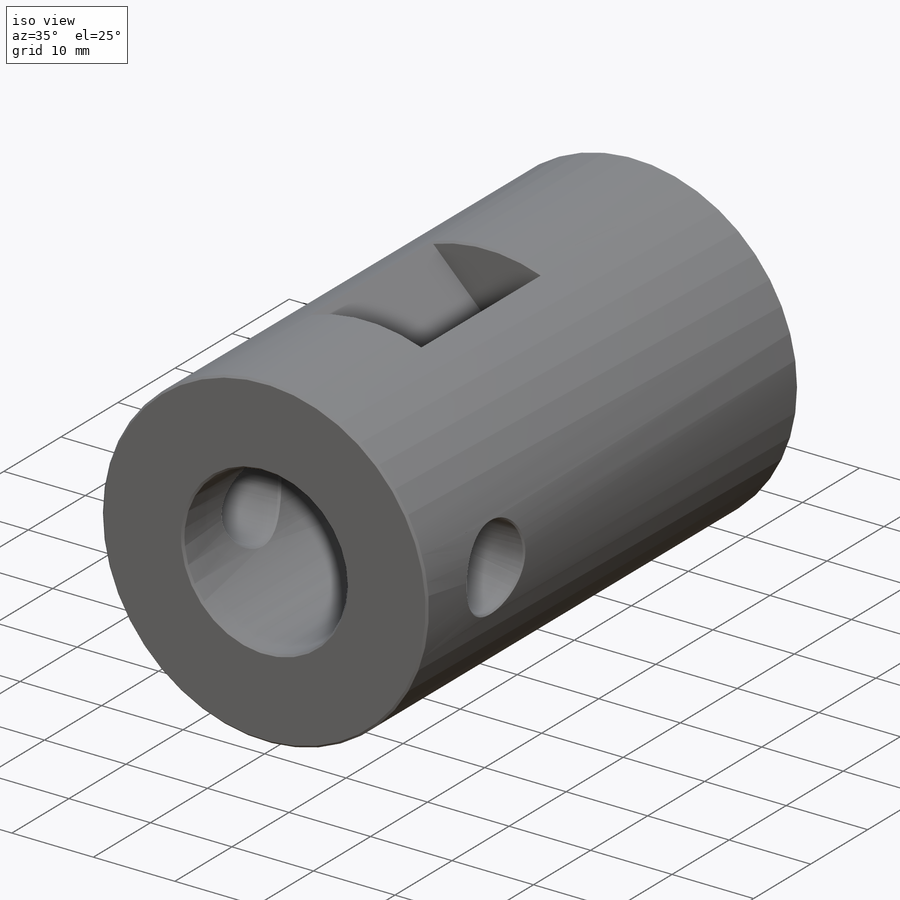
[diagram: iso view]
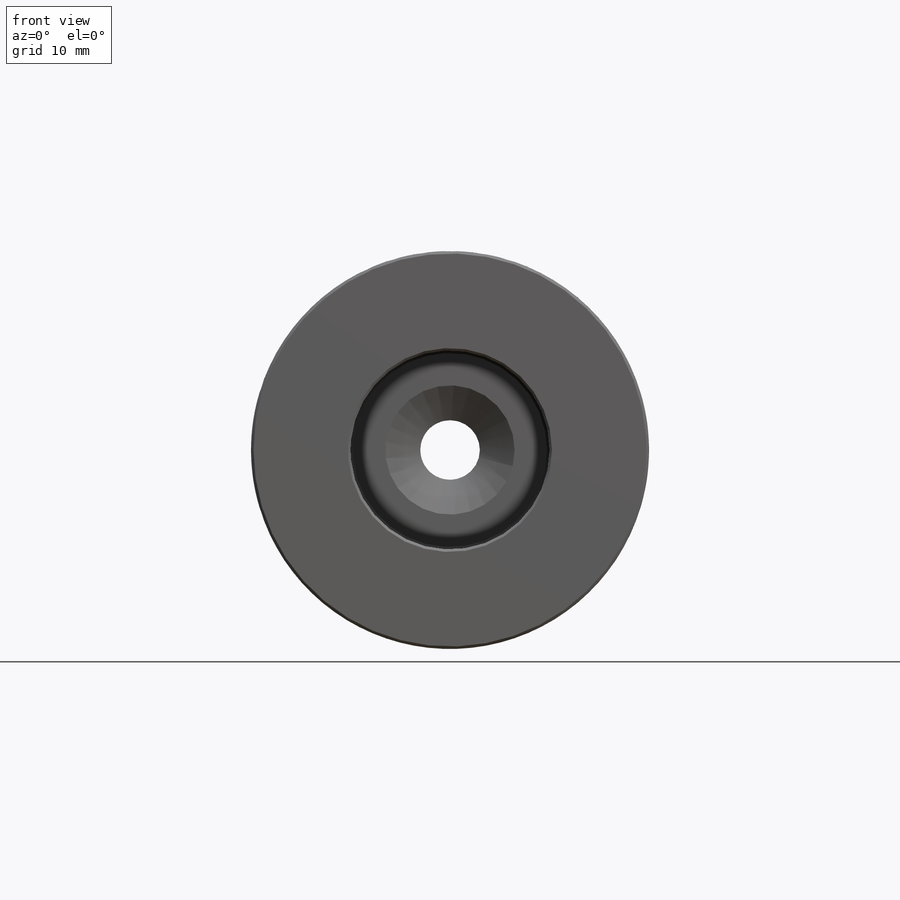
[diagram: front view]
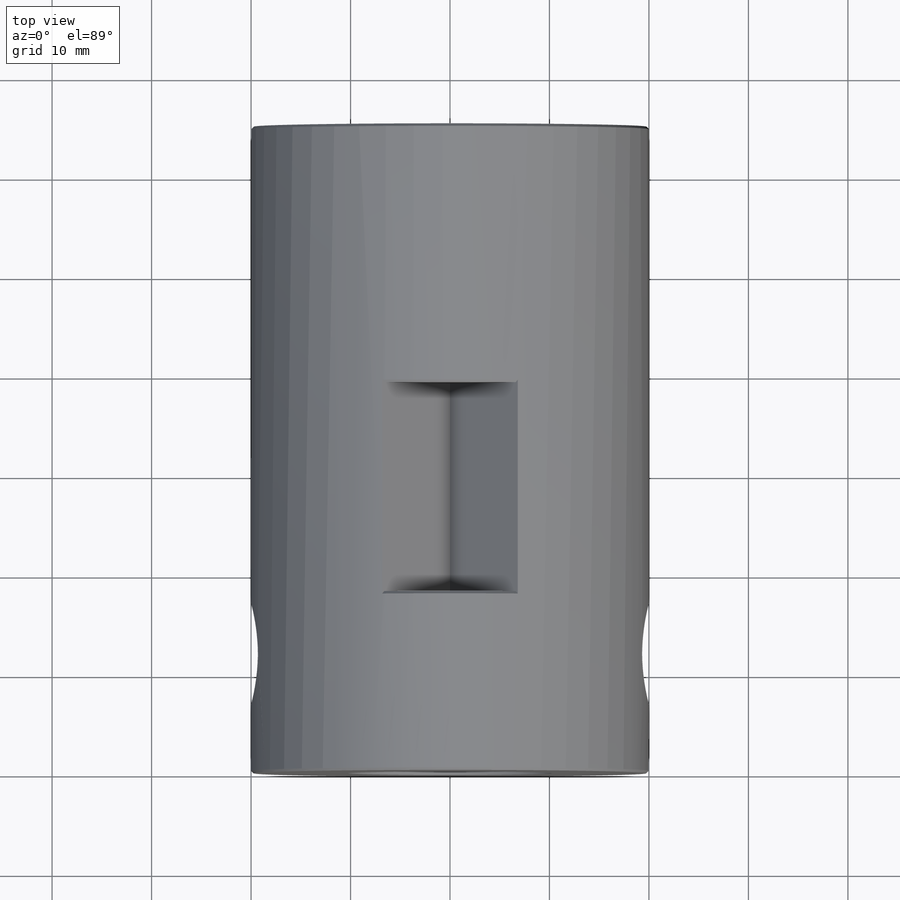
[diagram: top view]
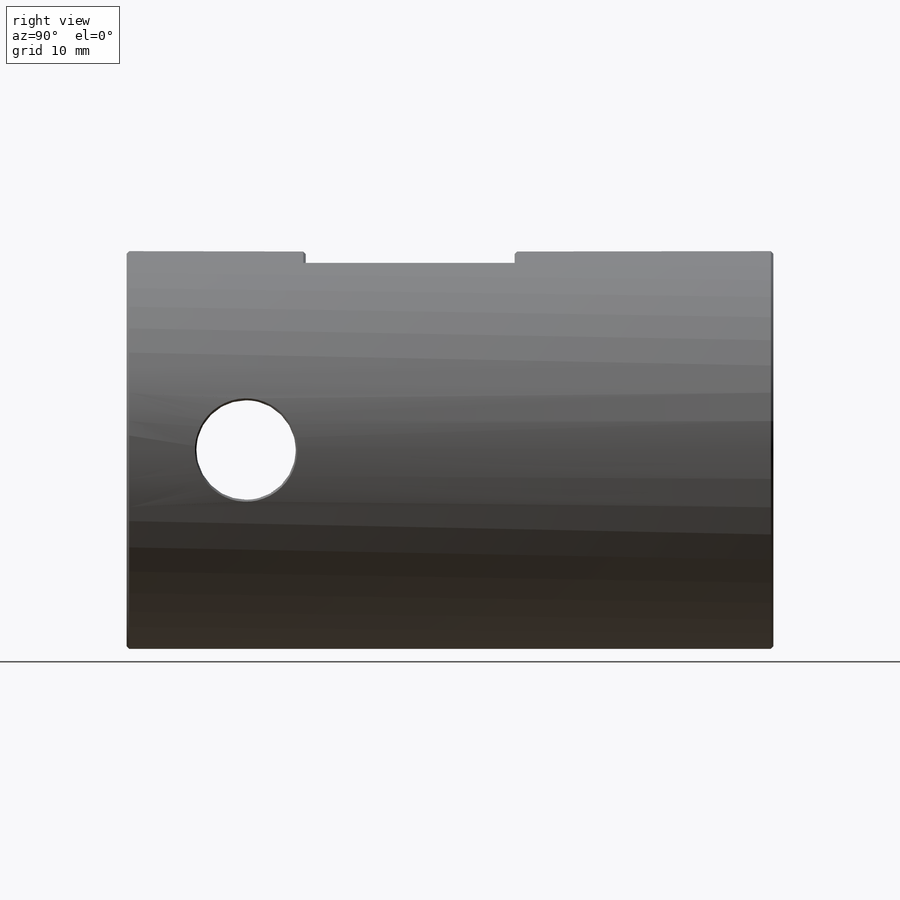
[diagram: right view]
SOLIDWORKS PART (.sldprt)
format: sldprt  version: not decoded by parser v0  size: 561,152 bytes
history: native  units: mm
features: plane x4, sketch x3, cut_extrude x2, chamfer x2, material x1, revolve x1 (+13 scaffold rows collapsed)
feature tree (26):
  scaffold x13  (default folders/planes/origin — collapsed)
  material  "Дуб"
  plane  "Спереди"
  plane  "Сверху"
  plane  "Справа"
  sketch  "Эскиз1"  dims[c1.D1=40.0mm c1.D2=65.0mm c1.D3=20.0mm c1.D4=13.0mm c1.D5=26.4mm c1.D6=6.0mm c1.D7=3.5mm c2.D7=59.0deg c2.D8=0.635mm]
  revolve  "Повернуть1"  Angle=360deg
  plane  "Плоскость1"  Offset=26mm
  sketch  "Эскиз2"  dims[c1.D1=~4.18357mm c2.D1=90.0deg c2.D2=12.0mm]
  cut_extrude  "Вырез-Вытянуть1"  Depth=21mm
  chamfer  "Фаска1"  Distance=0.25mm Angle=45deg
  sketch  "Эскиз3"  dims[D1=10.0mm D2=12.0mm]
  cut_extrude  "Вырез-Вытянуть2"  Depth=40mm
  chamfer  "Фаска2"  Distance=0.25mm Angle=45deg
decode coverage: 8 of 8 modeling features carry decoded parameters
note: ~ marks probable driven/reference dimensions
note: suppression state not decoded; provenance and decode notes live in map.json
